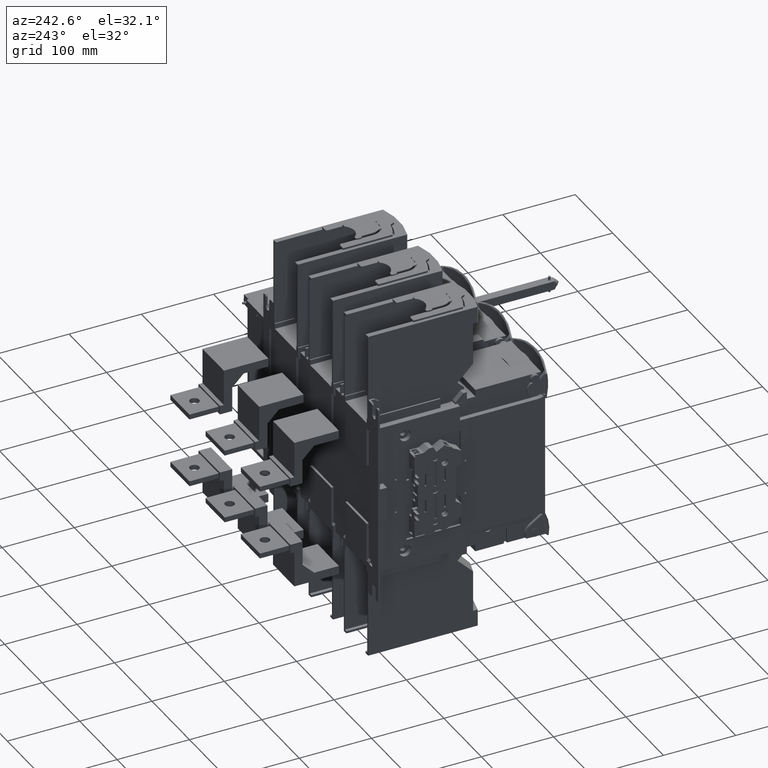
[diagram: clean part render]
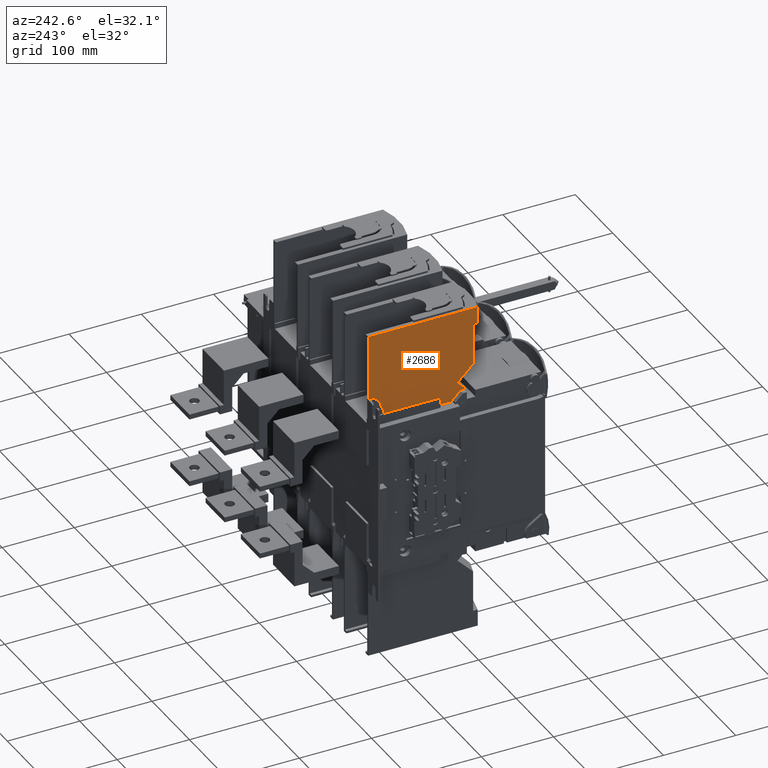
[diagram: same view with one face highlighted and labeled with its STEP entity id]
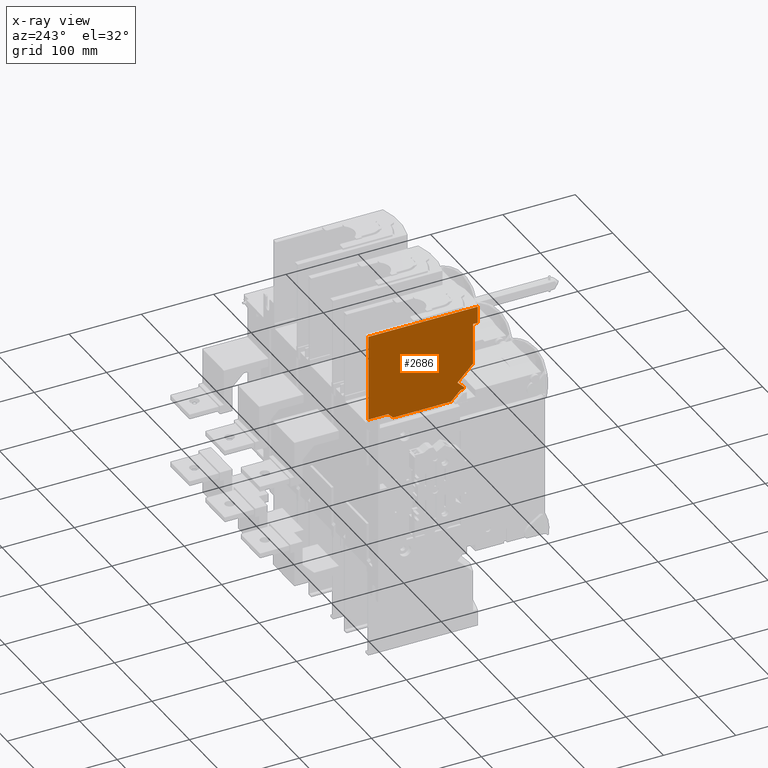
[diagram: x-ray of the same camera — body ghosted, the highlighted face saturated]
A machine part, auxiliary view. The second image highlights one B-rep face of the part: STEP entity #2686.
The next image is the same camera in x-ray: the body ghosted, the highlighted face saturated — about 0% of this face is hidden behind the body in this view.
In plain terms, the highlighted planar face has unit normal (-1, 0, 0).
Its self-contained STEP definition (entity closure, byte-faithful):
#492=B_SPLINE_CURVE_WITH_KNOTS('',3,(#84552,#84553,#84554,#84555),.UNSPECIFIED.,
.F.,.F.,(4,4),(0.,1.),.UNSPECIFIED.);
#493=B_SPLINE_CURVE_WITH_KNOTS('',3,(#84557,#84558,#84559,#84560),.UNSPECIFIED.,
.F.,.F.,(4,4),(0.,1.),.UNSPECIFIED.);
#2686=ADVANCED_FACE('',(#8168),#5581,.T.);
#5581=PLANE('',#58963);
#8168=FACE_OUTER_BOUND('',#11073,.T.);
#11073=EDGE_LOOP('',(#16176,#16177,#16178,#16179,#16180,#16181,#16182,#16183,
#16184,#16185,#16186,#16187,#16188));
#16176=ORIENTED_EDGE('',*,*,#37195,.F.);
#16177=ORIENTED_EDGE('',*,*,#37112,.F.);
#16178=ORIENTED_EDGE('',*,*,#37196,.T.);
#16179=ORIENTED_EDGE('',*,*,#37197,.F.);
#16180=ORIENTED_EDGE('',*,*,#37198,.F.);
#16181=ORIENTED_EDGE('',*,*,#37199,.F.);
#16182=ORIENTED_EDGE('',*,*,#37200,.T.);
#16183=ORIENTED_EDGE('',*,*,#37201,.T.);
#16184=ORIENTED_EDGE('',*,*,#37202,.T.);
#16185=ORIENTED_EDGE('',*,*,#37203,.T.);
#16186=ORIENTED_EDGE('',*,*,#37158,.F.);
#16187=ORIENTED_EDGE('',*,*,#37101,.F.);
#16188=ORIENTED_EDGE('',*,*,#37204,.F.);
#31243=VERTEX_POINT('',#84266);
#31244=VERTEX_POINT('',#84268);
#31248=VERTEX_POINT('',#84277);
#31254=VERTEX_POINT('',#84289);
#31300=VERTEX_POINT('',#84390);
#31327=VERTEX_POINT('',#84545);
#31328=VERTEX_POINT('',#84547);
#31329=VERTEX_POINT('',#84549);
#31330=VERTEX_POINT('',#84551);
#31331=VERTEX_POINT('',#84556);
#31332=VERTEX_POINT('',#84561);
#31333=VERTEX_POINT('',#84563);
#31334=VERTEX_POINT('',#84565);
#37101=EDGE_CURVE('',#31243,#31244,#45147,.T.);
#37112=EDGE_CURVE('',#31254,#31248,#45158,.T.);
#37158=EDGE_CURVE('',#31244,#31300,#45191,.T.);
#37195=EDGE_CURVE('',#31248,#31327,#45215,.T.);
#37196=EDGE_CURVE('',#31254,#31328,#45216,.T.);
#37197=EDGE_CURVE('',#31329,#31328,#45217,.T.);
#37198=EDGE_CURVE('',#31330,#31329,#45218,.T.);
#37199=EDGE_CURVE('',#31331,#31330,#492,.T.);
#37200=EDGE_CURVE('',#31331,#31332,#493,.T.);
#37201=EDGE_CURVE('',#31332,#31333,#45219,.T.);
#37202=EDGE_CURVE('',#31333,#31334,#45220,.T.);
#37203=EDGE_CURVE('',#31334,#31300,#45221,.T.);
#37204=EDGE_CURVE('',#31327,#31243,#45222,.T.);
#45147=LINE('',#84267,#52212);
#45158=LINE('',#84290,#52223);
#45191=LINE('',#84389,#52256);
#45215=LINE('',#84544,#52280);
#45216=LINE('',#84546,#52281);
#45217=LINE('',#84548,#52282);
#45218=LINE('',#84550,#52283);
#45219=LINE('',#84562,#52284);
#45220=LINE('',#84564,#52285);
#45221=LINE('',#84566,#52286);
#45222=LINE('',#84567,#52287);
#52212=VECTOR('',#63946,1.);
#52223=VECTOR('',#63959,1.);
#52256=VECTOR('',#64018,1.);
#52280=VECTOR('',#64058,1.);
#52281=VECTOR('',#64059,1.);
#52282=VECTOR('',#64060,1.);
#52283=VECTOR('',#64061,1.);
#52284=VECTOR('',#64062,1.);
#52285=VECTOR('',#64063,1.);
#52286=VECTOR('',#64064,1.);
#52287=VECTOR('',#64065,1.);
#58963=AXIS2_PLACEMENT_3D('',#84568,#64066,#64067);
#63946=DIRECTION('',(0.,0.,1.));
#63959=DIRECTION('',(1.2241504526315E-005,0.999999999925073,7.25715301534765E-013));
#64018=DIRECTION('',(-1.2241504526315E-005,-0.999999999925073,0.));
#64058=DIRECTION('',(8.65605086280745E-006,0.707106781160057,0.707106781160057));
#64059=DIRECTION('',(-8.65605086281397E-006,-0.70710678116059,0.707106781159524));
#64060=DIRECTION('',(1.2241504526315E-005,0.999999999925073,0.));
#64061=DIRECTION('',(0.,0.,-1.));
#64062=DIRECTION('',(0.,0.,1.));
#64063=DIRECTION('',(-1.2241504526315E-005,-0.999999999925073,0.));
#64064=DIRECTION('',(4.84438882501805E-015,0.,1.));
#64065=DIRECTION('',(1.2241504526315E-005,0.999999999925073,5.4363200724672E-021));
#64066=DIRECTION('',(-0.999999999925073,1.2241504526315E-005,0.));
#64067=DIRECTION('',(-1.22415045265001E-005,-0.999999999925073,0.));
#84266=CARTESIAN_POINT('',(-4353.99276897701,-270.99999999975,118.849999999995));
#84267=CARTESIAN_POINT('',(-4353.99276897701,-270.999999999503,153.648436029539));
#84268=CARTESIAN_POINT('',(-4353.99276897701,-270.999999999578,238.850000000011));
#84277=CARTESIAN_POINT('',(-4353.99319133001,-305.501723508286,111.849999999983));
#84289=CARTESIAN_POINT('',(-4353.99417062928,-385.499999999478,111.849999999925));
#84290=CARTESIAN_POINT('',(-4353.99276897708,-271.000006208823,111.850000000008));
#84389=CARTESIAN_POINT('',(-4353.99537166517,-483.611787291707,238.850000000011));
#84390=CARTESIAN_POINT('',(-4353.99462304384,-422.457431294511,238.850000000011));
#84544=CARTESIAN_POINT('',(-4353.99319133001,-305.501722937873,111.850000570396));
#84545=CARTESIAN_POINT('',(-4353.99310563948,-298.501723508274,118.849999999995));
#84546=CARTESIAN_POINT('',(-4353.99372564105,-349.149221113031,75.4992211135326));
#84547=CARTESIAN_POINT('',(-4353.99433090599,-398.592893218283,124.94289321871));
#84548=CARTESIAN_POINT('',(-4353.99276897708,-271.000006208853,124.94289321871));
#84549=CARTESIAN_POINT('',(-4353.99439097636,-403.499999999485,124.94289321871));
#84550=CARTESIAN_POINT('',(-4353.99439097636,-403.499999999485,153.648436029539));
#84551=CARTESIAN_POINT('',(-4353.99439097636,-403.499999999485,127.819300089872));
#84552=CARTESIAN_POINT('',(-4353.994280488,-394.474283001185,136.845017088186));
#84553=CARTESIAN_POINT('',(-4353.99431731745,-397.482855333951,133.836444755414));
#84554=CARTESIAN_POINT('',(-4353.99435414691,-400.491427666718,130.827872422643));
#84555=CARTESIAN_POINT('',(-4353.99439097636,-403.499999999485,127.819300089872));
#84556=CARTESIAN_POINT('',(-4353.994280488,-394.474283001185,136.845017088186));
#84557=CARTESIAN_POINT('',(-4353.994280488,-394.474283001185,136.845017088186));
#84558=CARTESIAN_POINT('',(-4353.9943686178,-401.673544783559,144.044323690216));
#84559=CARTESIAN_POINT('',(-4353.9944567476,-408.872806565842,151.243630292338));
#84560=CARTESIAN_POINT('',(-4353.99454487739,-416.072068348011,158.442936894574));
#84561=CARTESIAN_POINT('',(-4353.99454487739,-416.072068348011,158.442936894574));
#84562=CARTESIAN_POINT('',(-4353.99454487739,-416.072068348011,153.648436029539));
#84563=CARTESIAN_POINT('',(-4353.99454487739,-416.072068348011,215.648436029539));
#84564=CARTESIAN_POINT('',(-4353.99276897708,-271.000006208853,215.648436029539));
#84565=CARTESIAN_POINT('',(-4353.99462304384,-422.457431294511,215.648436029539));
#84566=CARTESIAN_POINT('',(-4353.99462304384,-422.457431294511,226.249217974586));
#84567=CARTESIAN_POINT('',(-4353.99310563947,-298.501722368521,118.849999999995));
#84568=CARTESIAN_POINT('',(-4353.99276897708,-271.000006208853,153.648436029539));